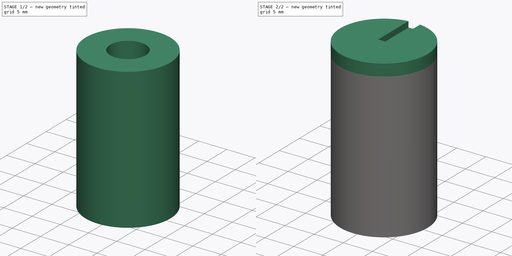
[diagram: build sequence overview — one tinted view per stage of 2, left to right]
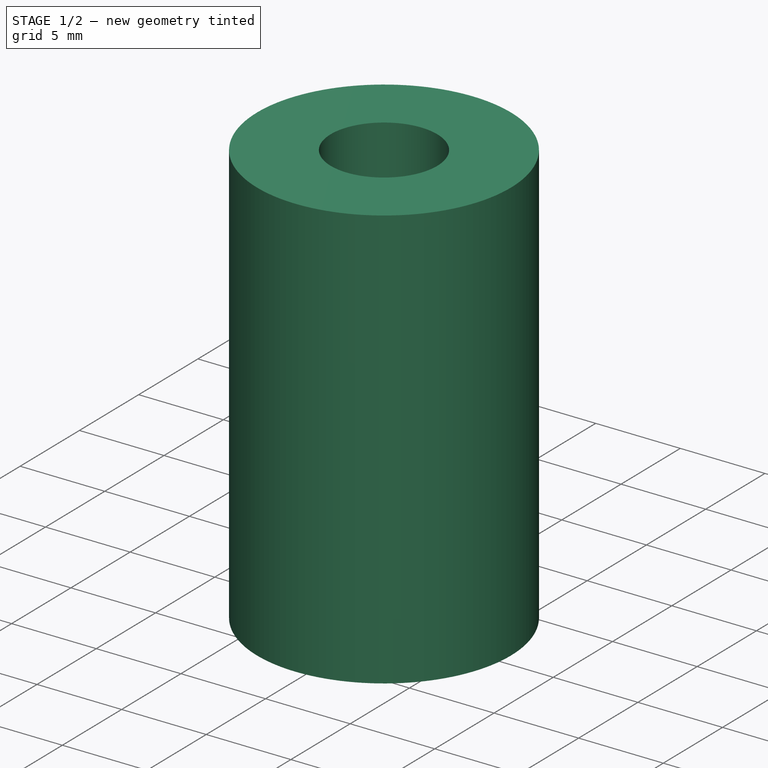
[diagram: stage 1 of 2 — iso view after this stage's code; geometry added in this stage tinted green]
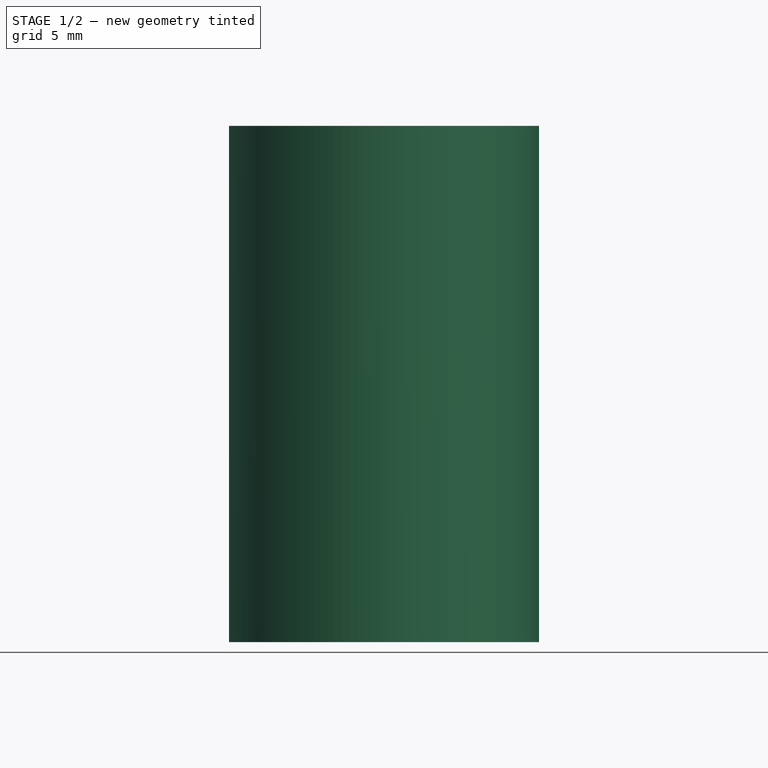
[diagram: stage 1 of 2 — front view after this stage's code; geometry added in this stage tinted green]
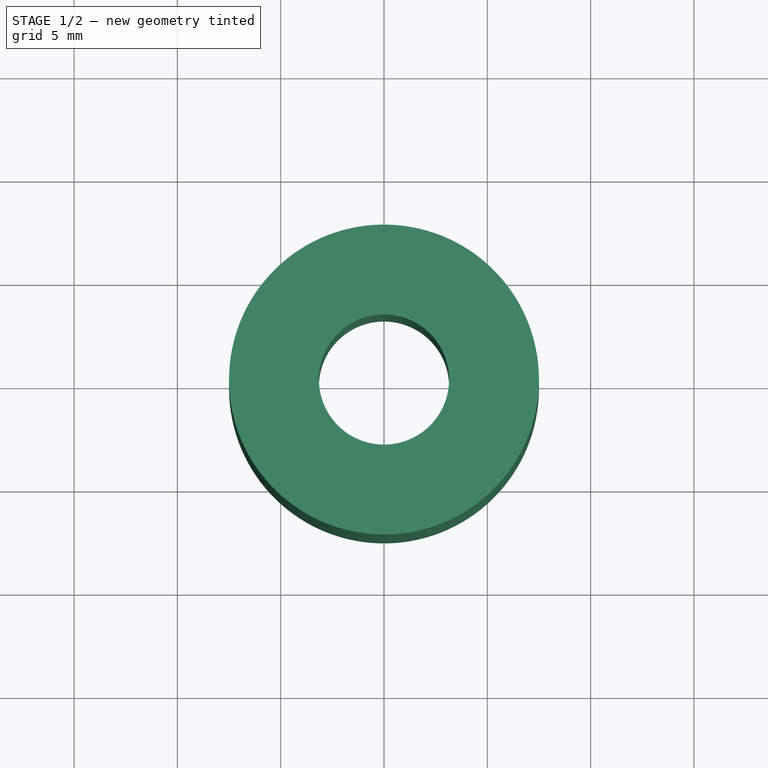
[diagram: stage 1 of 2 — top view after this stage's code; geometry added in this stage tinted green]
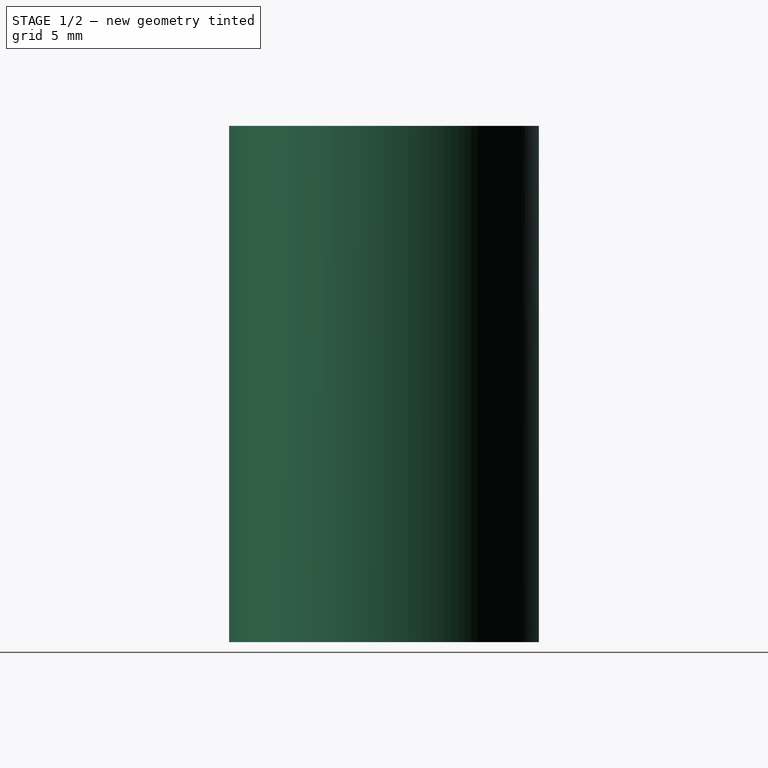
[diagram: stage 1 of 2 — right view after this stage's code; geometry added in this stage tinted green]
FCSTD DOCUMENT  (FreeCAD 0.19R24366 (Git))
Label: encoder_knob
License: All rights reserved
LicenseURL: http://en.wikipedia.org/wiki/All_rights_reserved
objects: Sketcher::SketchObject×4, PartDesign::Pad×3, PartDesign::Plane×3, PartDesign::Pocket×1, PartDesign::Body×1, PartDesign::CoordinateSystem×1, App::Part×1
note: 17 computed .brp shape members not serialized (recipe doc carries the construction recipe); baked Part::Feature solids carry a one-line shape summary decoded from their .brp
EXTERNAL_REF file=../master.FCStd obj=Spreadsheet

FEATURE [Sketcher::SketchObject] Sketch  label="unthreaded_pad_sketch"
  FullyConstrained = true
  MapMode = 5
  Support = -> [XY_Plane001]
  expr: Constraints[3] = <<master>>#<<inputs>>.encoder_threaded_shaft_diameter / 2 + <<master>>#<<inputs>>.encoder_shaft_tolerance + <<master>>#<<inputs>>.printer_tolerance
  expr: Constraints[1] = <<master>>#<<inputs>>.encoder_knob_diameter / 2
  sketch-geometry (2):
    g0: Circle CenterX=0 CenterY=0 CenterZ=0 NormalX=0 NormalY=0 NormalZ=1 AngleXU=0 Radius=7.5
    g1: Circle CenterX=0 CenterY=0 CenterZ=0 NormalX=0 NormalY=0 NormalZ=1 AngleXU=0 Radius=3.525
  constraints (4):
    c: Coincident(g0,g-1)
    c: Radius(g0) = 7.5
    c: Coincident(g1,g0)
    c: Radius(g1) = 3.525
FEATURE [PartDesign::Pad] Pad  label="unthreaded_pad"
  Direction = (1,1,1)
  Length = 5.1375
  Length2 = 100
  Profile = -> Sketch
  Type = 0
  expr: Length = <<master>>#<<inputs>>.encoder_threaded_shaft_length * <<master>>#<<inputs>>.encoder_threaded_shaft_coverage
FEATURE [PartDesign::Plane] DatumPlane001  label="threaded_datum_plane"
  AttachmentOffset = pos=(0,0,5.1375) rot=(0,0,1;0rad)
  Length = 60
  MapMode = 5
  Placement = pos=(0,0,5.1375) rot=(0,0,1;0rad)
  ResizeMode = 0
  Support = -> [XY_Plane001]
  Width = 60
  expr: .AttachmentOffset.Base.z = <<master>>#<<inputs>>.encoder_threaded_shaft_length * <<master>>#<<inputs>>.encoder_threaded_shaft_coverage
FEATURE [Sketcher::SketchObject] Sketch001  label="threaded_pad_sketch"
  FullyConstrained = true
  MapMode = 5
  Placement = pos=(0,0,5.1375) rot=(0,0,1;0rad)
  Support = -> [DatumPlane001]
  expr: Constraints[3] = <<master>>#<<inputs>>.encoder_unthreaded_shaft_diameter / 2 + <<master>>#<<inputs>>.encoder_shaft_tolerance + <<master>>#<<inputs>>.printer_tolerance
  expr: Constraints[2] = <<master>>#<<inputs>>.encoder_knob_diameter / 2
  sketch-geometry (2):
    g0: Circle CenterX=0 CenterY=0 CenterZ=0 NormalX=0 NormalY=0 NormalZ=1 AngleXU=0 Radius=7.5
    g1: Circle CenterX=0 CenterY=0 CenterZ=0 NormalX=0 NormalY=0 NormalZ=1 AngleXU=0 Radius=3.15
  constraints (4):
    c: Coincident(g0,g-1)
    c: Coincident(g1,g0)
    c: Radius(g0) = 7.5
    c: Radius(g1) = 3.15
FEATURE [PartDesign::Pad] Pad001  label="threaded_pad"
  BaseFeature = -> Pad
  Direction = (1,1,1)
  Length = 19.85
  Length2 = 100
  Profile = -> Sketch001
  Type = 0
  expr: Length = <<master>>#<<inputs>>.encoder_unthreaded_shaft_length
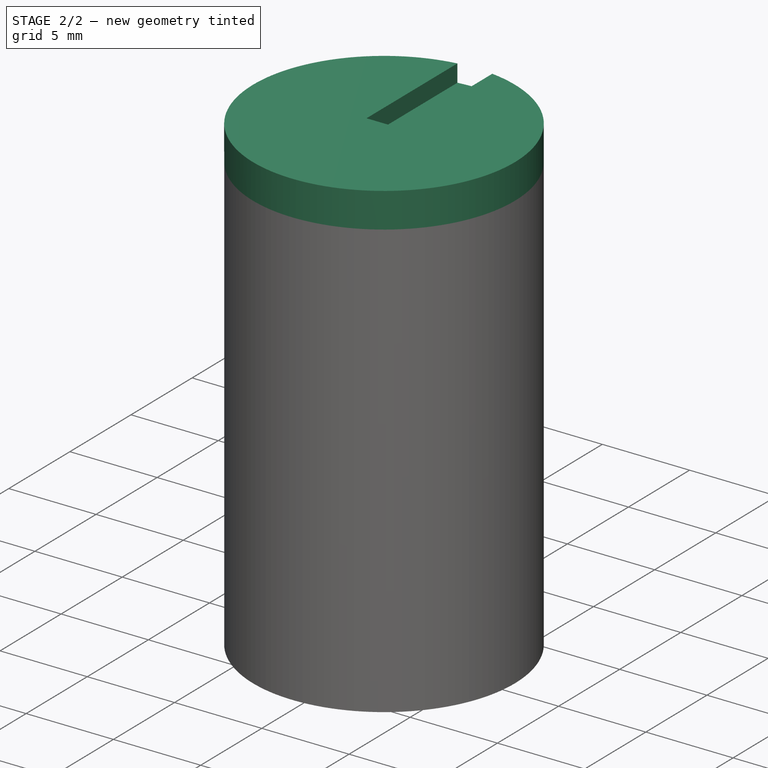
[diagram: stage 2 of 2 — iso view after this stage's code; geometry added in this stage tinted green]
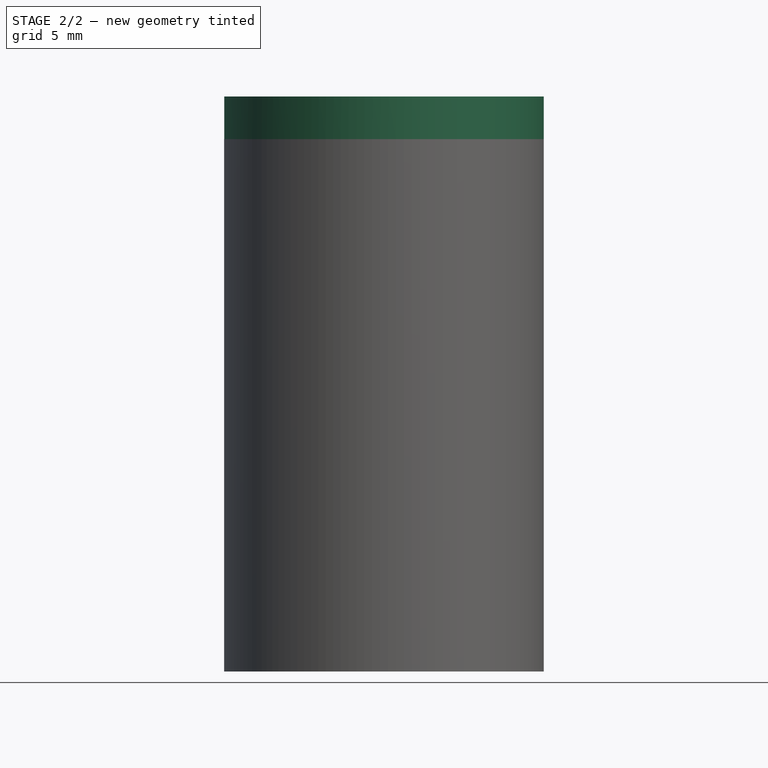
[diagram: stage 2 of 2 — front view after this stage's code; geometry added in this stage tinted green]
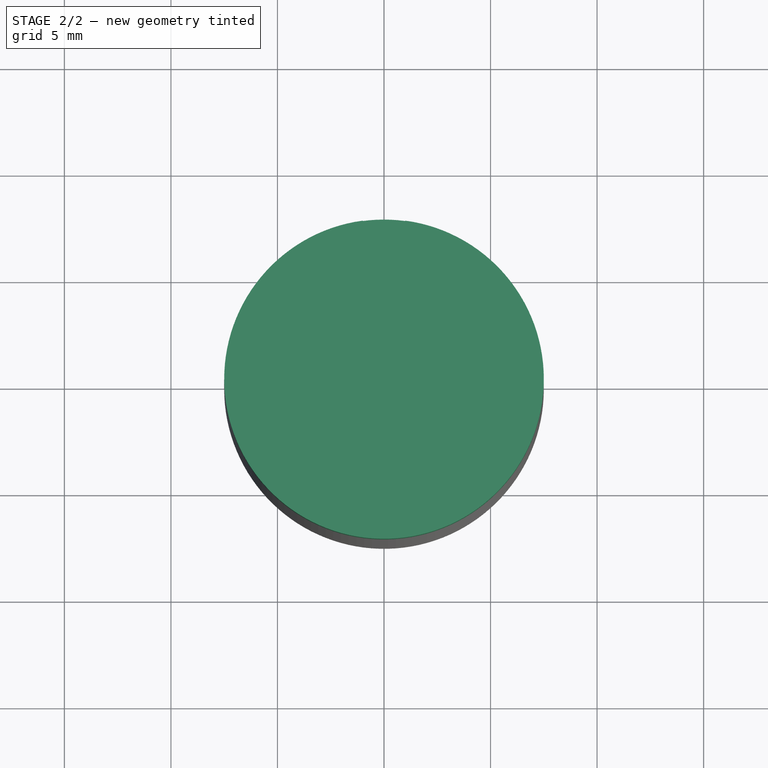
[diagram: stage 2 of 2 — top view after this stage's code; geometry added in this stage tinted green]
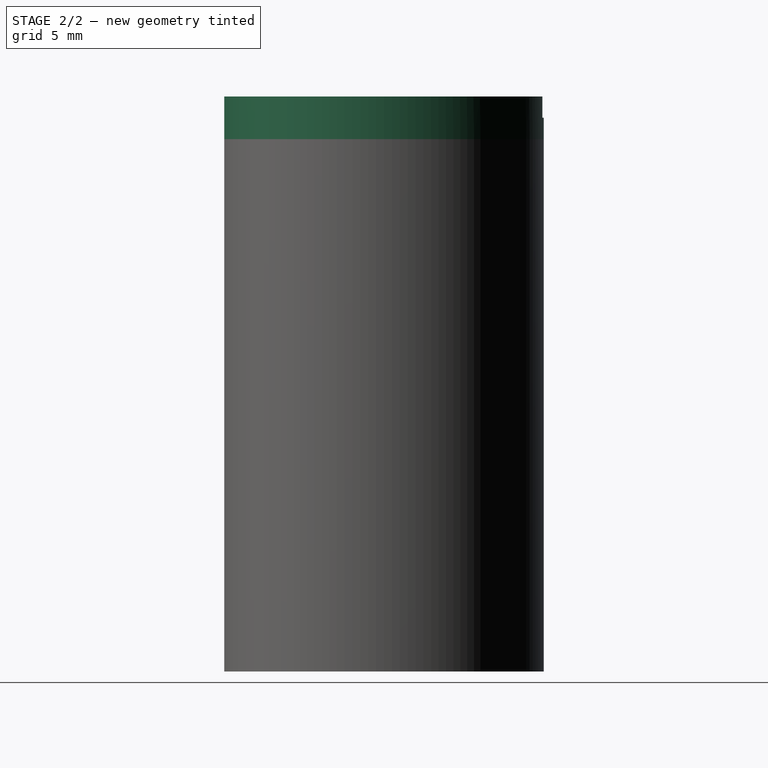
[diagram: stage 2 of 2 — right view after this stage's code; geometry added in this stage tinted green]
FEATURE [PartDesign::Plane] DatumPlane  label="cap_datum_plane"
  AttachmentOffset = pos=(0,0,19.85) rot=(0,0,1;0rad)
  Length = 60
  MapMode = 5
  Placement = pos=(0,0,24.9875) rot=(0,0,1;0rad)
  ResizeMode = 0
  Support = -> [DatumPlane001]
  Width = 60
  expr: .AttachmentOffset.Base.z = <<master>>#<<inputs>>.encoder_unthreaded_shaft_length
FEATURE [Sketcher::SketchObject] Sketch002  label="cap_pad_sketch"
  FullyConstrained = true
  MapMode = 5
  Placement = pos=(0,0,24.9875) rot=(0,0,1;0rad)
  Support = -> [DatumPlane]
  expr: Constraints[1] = <<master>>#<<inputs>>.encoder_knob_diameter / 2
  sketch-geometry (1):
    g0: Circle CenterX=0 CenterY=0 CenterZ=0 NormalX=0 NormalY=0 NormalZ=1 AngleXU=0 Radius=7.5
  constraints (2):
    c: Coincident(g0,g-1)
    c: Radius(g0) = 7.5
FEATURE [PartDesign::Pad] Pad002  label="cap_pad"
  BaseFeature = -> Pad001
  Direction = (1,1,1)
  Length = 2
  Length2 = 100
  Profile = -> Sketch002
  Type = 0
  expr: Length = <<master>>#<<inputs>>.encoder_cap_length
FEATURE [PartDesign::Plane] DatumPlane002  label="marker_datum_plane"
  AttachmentOffset = pos=(0,0,2) rot=(0,0,1;0rad)
  Length = 60
  MapMode = 2
  Placement = pos=(0,0,26.9875) rot=(0,0,1;0rad)
  ResizeMode = 0
  Support = -> [DatumPlane]
  Width = 60
  expr: .AttachmentOffset.Base.z = <<master>>#<<inputs>>.encoder_cap_length
FEATURE [Sketcher::SketchObject] Sketch003  label="marker_sketch"
  FullyConstrained = false
  MapMode = 5
  Placement = pos=(0,0,26.9875) rot=(0,0,1;0rad)
  Support = -> [DatumPlane002]
  expr: Constraints[9] = <<master>>#<<inputs>>.encoder_marker_width
  expr: Constraints[8] = <<master>>#<<inputs>>.encoder_knob_diameter / 2
  sketch-geometry (5):
    g0: LineSegment StartX=1 StartY=0 StartZ=0 EndX=-1 EndY=0 EndZ=0
    g1: LineSegment StartX=-1 StartY=0 StartZ=0 EndX=-1 EndY=7.5 EndZ=0
    g2: LineSegment StartX=-1 StartY=7.5 StartZ=0 EndX=1 EndY=7.5 EndZ=0
    g3: LineSegment StartX=1 StartY=7.5 StartZ=0 EndX=1 EndY=0 EndZ=0
    g4: GeomPoint X=1.62001 Y=0.379815 Z=0
  constraints (11):
    c: Coincident(g0,g1)
    c: Coincident(g1,g2)
    c: Coincident(g2,g3)
    c: Coincident(g3,g0)
    c: Horizontal(g0)
    c: Horizontal(g2)
    c: Vertical(g1)
    c: Vertical(g3)
    c: Distance(g1) = 7.5
    c: Distance(g2) = 2
    c: Symmetric(g0,g0,g-1)
FEATURE [PartDesign::Pocket] Pocket  label="marker_pocket"
  BaseFeature = -> Pad002
  Length = 1
  Length2 = 100
  Profile = -> Sketch003
  Type = 0
  expr: Length = <<master>>#<<inputs>>.encoder_marker_depth
FEATURE [PartDesign::Body] Body  label="encoder_knob_body"
  Group = -> [Sketch,Pad,DatumPlane001,Sketch001,Pad001,DatumPlane,Sketch002,Pad002,DatumPlane002,Sketch003,Pocket]
  Origin = -> Origin001
  Tip = -> Pocket
FEATURE [PartDesign::CoordinateSystem] encoder_knob_lcs
  AttacherType = Attacher::AttachEngine3D
  AttachmentOffset = pos=(0,0,24.9875) rot=(0,0,1;0rad)
  MapMode = 11
  Placement = pos=(0,0,24.9875) rot=(0,0,1;1.5708rad)
  Support = -> [Pocket]
  expr: .AttachmentOffset.Base.z = <<master>>#<<inputs>>.encoder_threaded_shaft_length * <<master>>#<<inputs>>.encoder_threaded_shaft_coverage + <<master>>#<<inputs>>.encoder_unthreaded_shaft_length
FEATURE [App::Part] Part  label="encoder_knob_part"
  Group = -> [encoder_knob_lcs,Body]
  Origin = -> Origin
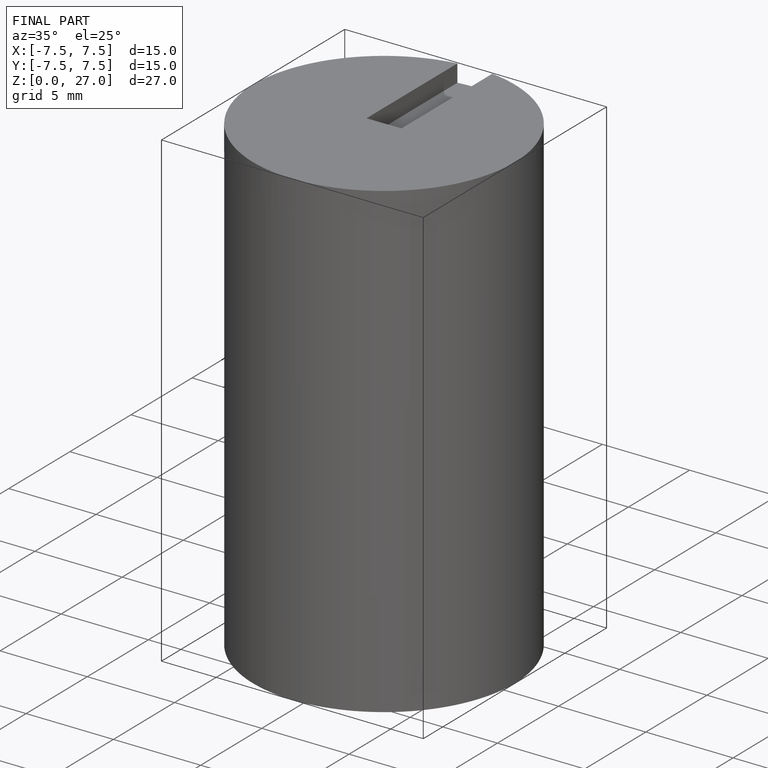
[diagram: finished part — iso view with bounding-box wireframe]
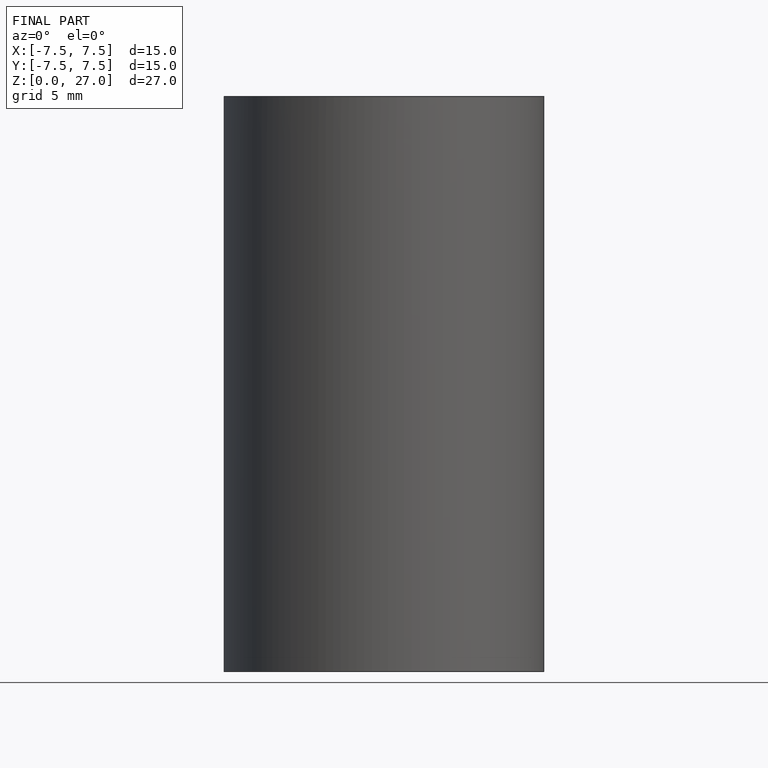
[diagram: finished part — front view with bounding-box wireframe]
